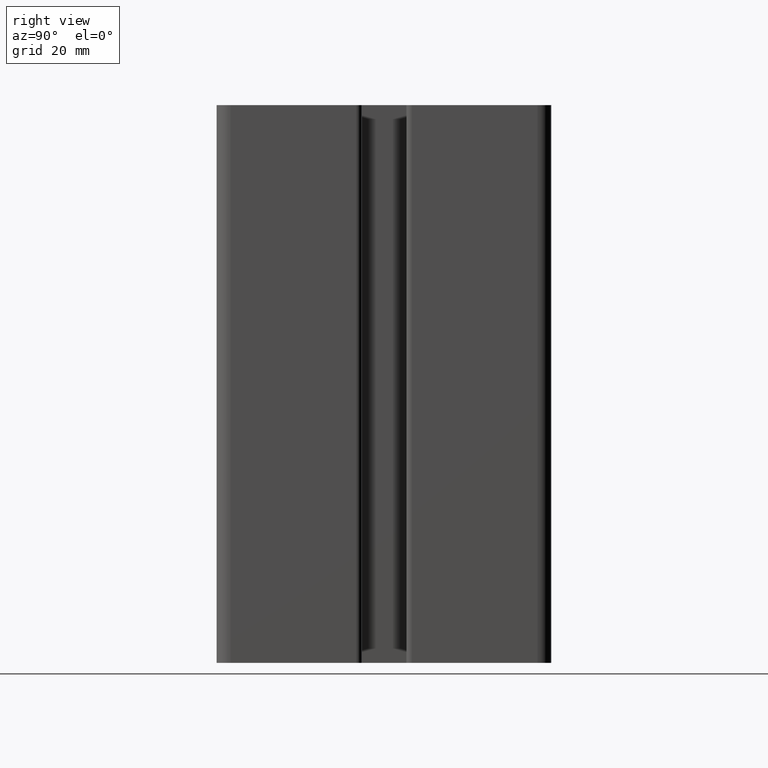
[diagram: clean part render]
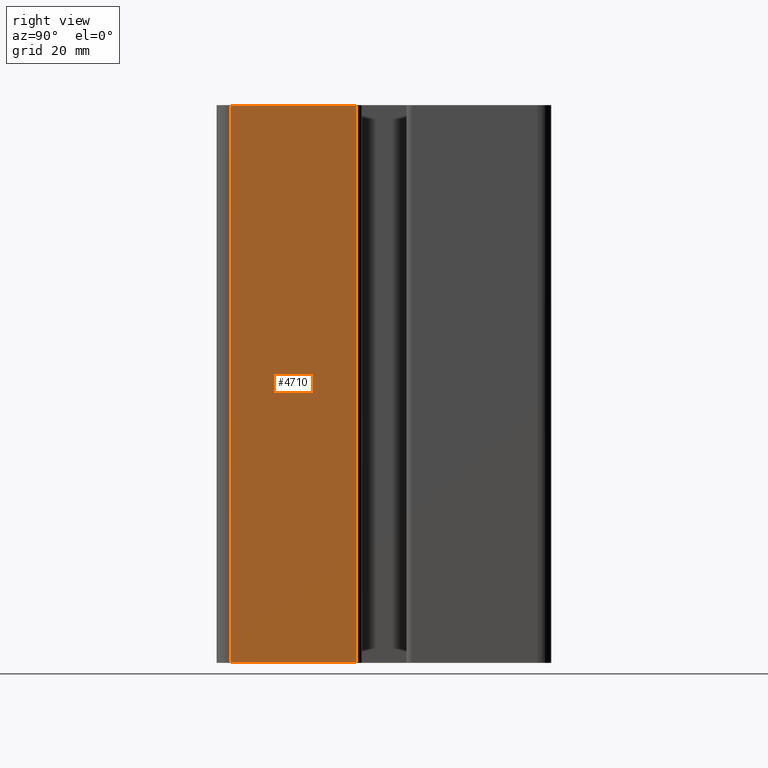
[diagram: same view with one face highlighted and labeled with its STEP entity id]
A machine part, right view. The second image highlights one B-rep face of the part: STEP entity #4710.
In plain terms, the highlighted planar face has unit normal (1, 0, 0).
Its self-contained STEP definition (entity closure, byte-faithful):
#149=PLANE('',#5179);
#382=FACE_OUTER_BOUND('',#627,.T.);
#627=EDGE_LOOP('',(#4114,#4115,#4116,#4117));
#947=LINE('',#7525,#1411);
#1097=LINE('',#7965,#1561);
#1101=LINE('',#7979,#1565);
#1102=LINE('',#7980,#1566);
#1411=VECTOR('',#6116,100.);
#1561=VECTOR('',#6556,22.5000019959489);
#1565=VECTOR('',#6574,22.5000019959489);
#1566=VECTOR('',#6575,100.);
#2117=VERTEX_POINT('',#7521);
#2119=VERTEX_POINT('',#7524);
#2264=VERTEX_POINT('',#7964);
#2267=VERTEX_POINT('',#7978);
#2732=EDGE_CURVE('',#2117,#2119,#947,.T.);
#2954=EDGE_CURVE('',#2119,#2264,#1097,.T.);
#2961=EDGE_CURVE('',#2117,#2267,#1101,.T.);
#2962=EDGE_CURVE('',#2264,#2267,#1102,.T.);
#4114=ORIENTED_EDGE('',*,*,#2732,.F.);
#4115=ORIENTED_EDGE('',*,*,#2961,.T.);
#4116=ORIENTED_EDGE('',*,*,#2962,.F.);
#4117=ORIENTED_EDGE('',*,*,#2954,.F.);
#4710=ADVANCED_FACE('',(#382),#149,.T.);
#5179=AXIS2_PLACEMENT_3D('',#7977,#6572,#6573);
#6116=DIRECTION('',(0.,0.,-1.));
#6556=DIRECTION('',(0.,-1.,0.));
#6572=DIRECTION('center_axis',(1.,0.,0.));
#6573=DIRECTION('ref_axis',(0.,1.,0.));
#6574=DIRECTION('',(0.,-1.,0.));
#6575=DIRECTION('',(0.,0.,1.));
#7521=CARTESIAN_POINT('',(30.,-4.99999800405114,100.));
#7524=CARTESIAN_POINT('',(30.,-4.99999800405114,0.));
#7525=CARTESIAN_POINT('',(30.,-4.99999800405115,0.));
#7964=CARTESIAN_POINT('',(30.,-27.5,0.));
#7965=CARTESIAN_POINT('',(30.,-13.75,0.));
#7977=CARTESIAN_POINT('Origin',(30.,-27.5,0.));
#7978=CARTESIAN_POINT('',(30.,-27.5,100.));
#7979=CARTESIAN_POINT('',(30.,-13.75,100.));
#7980=CARTESIAN_POINT('',(30.,-27.5,0.));